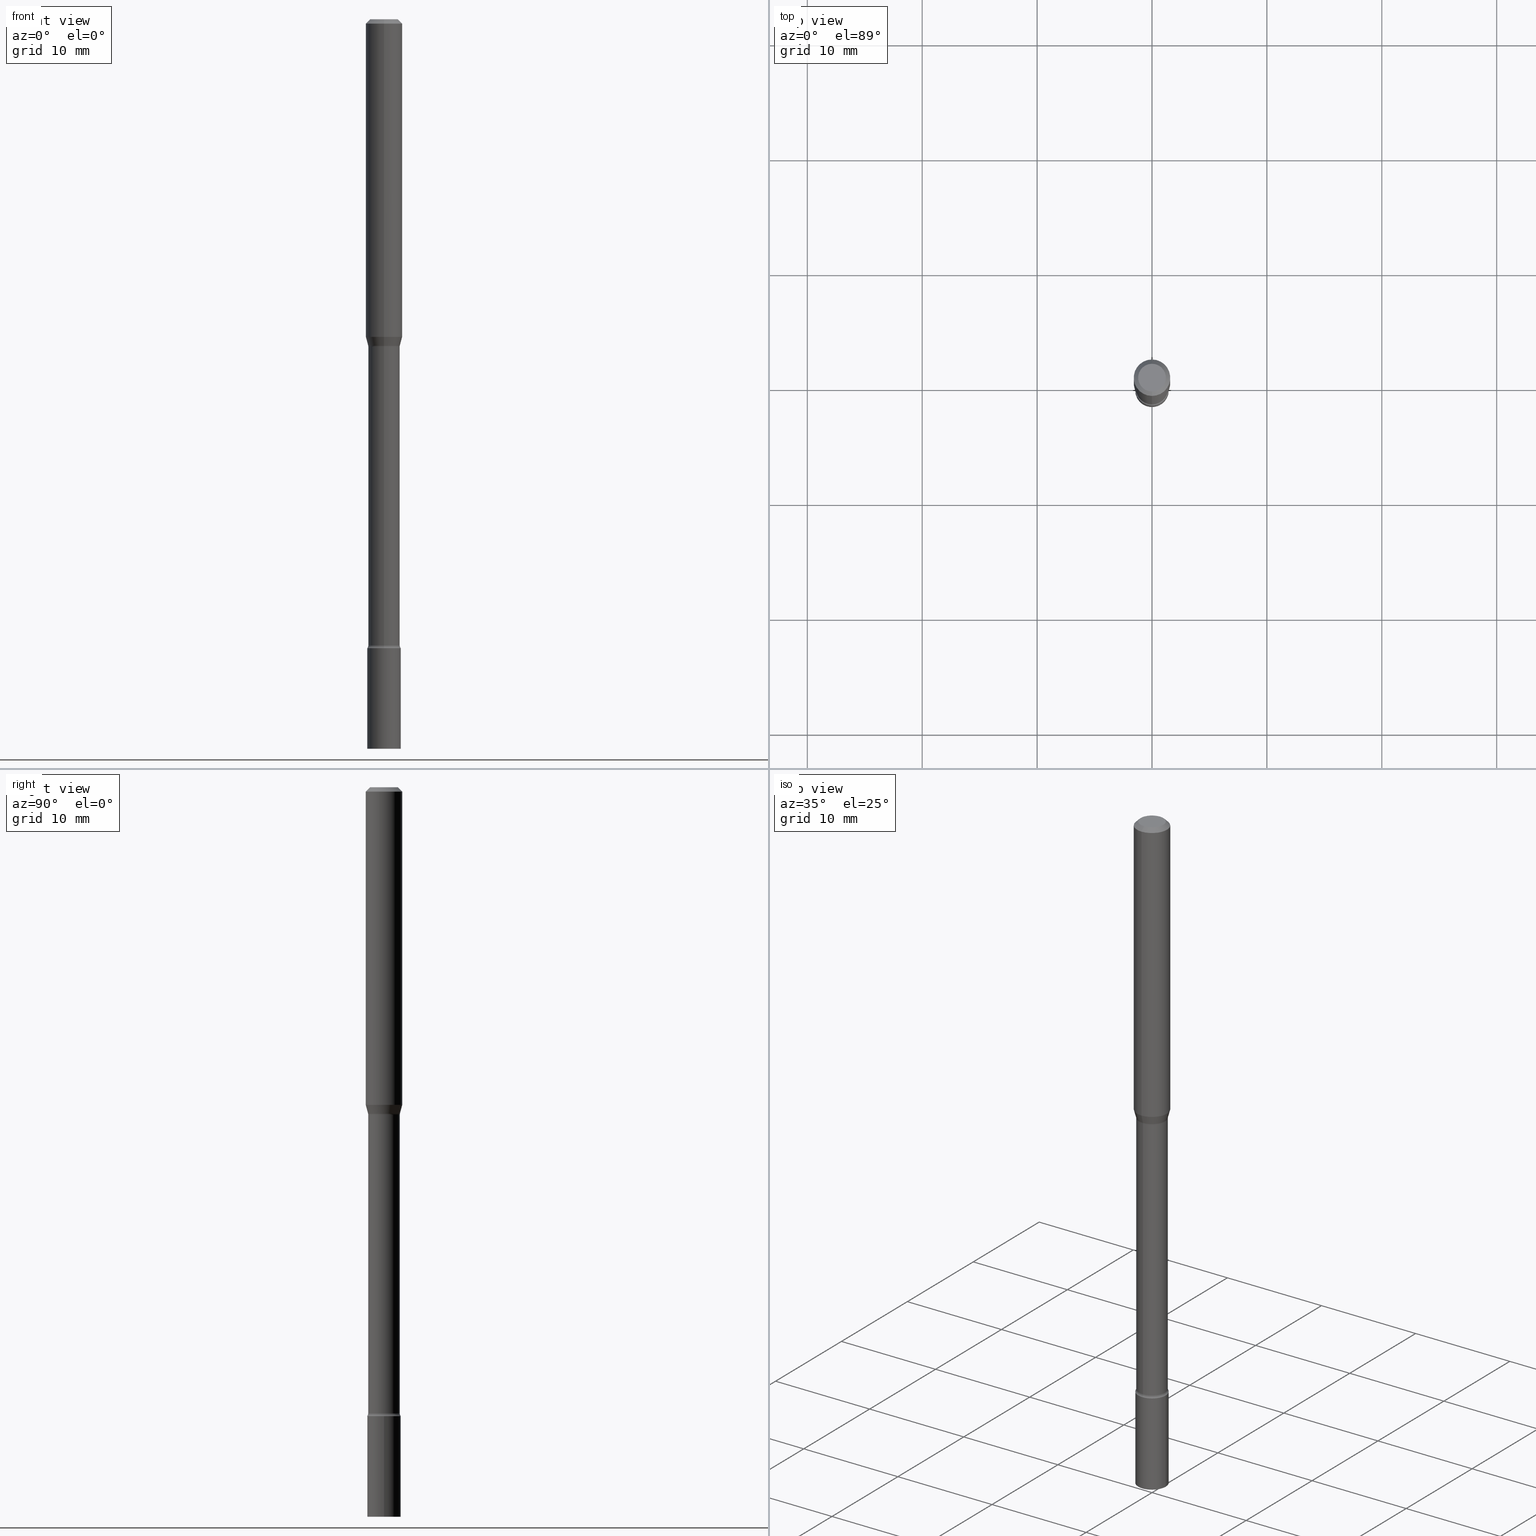
[diagram: canonical four-view strip — front | top / right | iso, engineering-drawing reading convention]
A machine part, canonical four-view strip (front | top / right | iso — engineering-drawing reading convention). The complete STEP part file that produces these views, byte-faithful:
ISO-10303-21;
HEADER;
FILE_DESCRIPTION (( 'STEP AP203' ),
    '1' );
FILE_NAME ('01365.STEP',
    '2024-03-08T21:17:14',
    ( '' ),
    ( '' ),
    'SwSTEP 2.0',
    'SolidWorks 2023',
    '' );
FILE_SCHEMA (( 'CONFIG_CONTROL_DESIGN' ));
ENDSEC;

DATA;
#1 = AXIS2_PLACEMENT_3D ( 'NONE', #306, #345, #19 ) ;
#2 = PRODUCT ( '01365', '01365', '', ( #162 ) ) ;
#3 = ADVANCED_FACE ( 'NONE', ( #180 ), #314, .F. ) ;
#4 = ORIENTED_EDGE ( 'NONE', *, *, #278, .F. ) ;
#5 = ORGANIZATION ( 'UNSPECIFIED', 'UNSPECIFIED', '' ) ;
#6 = PRODUCT_DEFINITION_FORMATION_WITH_SPECIFIED_SOURCE ( 'ANY', '', #2, .NOT_KNOWN. ) ;
#7 = TOROIDAL_SURFACE ( 'NONE', #303, 0.06905000000000000027, 0.01500000000000000638 ) ;
#8 = DIRECTION ( 'NONE',  ( -2.445436772389647239E-29, 3.491527213061536699E-15, 1.000000000000000000 ) ) ;
#9 = EDGE_CURVE ( 'NONE', #115, #444, #269, .T. ) ;
#10 = LINE ( 'NONE', #241, #237 ) ;
#11 = DIRECTION ( 'NONE',  ( 4.937700262164548042E-15, 0.7071067811865451302, -0.7071067811865499042 ) ) ;
#12 = DIRECTION ( 'NONE',  ( -6.982962677686265922E-15, -1.000000000000000000, 2.527148930309216761E-15 ) ) ;
#13 = DIRECTION ( 'NONE',  ( 2.445436772389646959E-29, -3.491527213061536699E-15, -1.000000000000000000 ) ) ;
#14 =( CONVERSION_BASED_UNIT ( 'INCH', #452 ) LENGTH_UNIT ( ) NAMED_UNIT ( #311 ) );
#15 = VECTOR ( 'NONE', #298, 39.37007874015748143 ) ;
#16 = ADVANCED_FACE ( 'NONE', ( #31 ), #475, .T. ) ;
#17 = MANIFOLD_SOLID_BREP ( 'Body-Move/Copy2[2]', #49 ) ;
#18 = MANIFOLD_SOLID_BREP ( 'Body-Move/Copy2[1]', #342 ) ;
#19 = DIRECTION ( 'NONE',  ( 1.000000000000000000, -6.982962677686256455E-15, 0.000000000000000000 ) ) ;
#20 = AXIS2_PLACEMENT_3D ( 'NONE', #143, #393, #308 ) ;
#21 = CARTESIAN_POINT ( 'NONE',  ( -3.809982129783617078E-16, -0.05456111260566786497, -1.118092501787273374 ) ) ;
#22 = CARTESIAN_POINT ( 'NONE',  ( 4.440892098500625669E-16, 0.06250000000000000000, -2.182204508163460437E-16 ) ) ;
#23 = AXIS2_PLACEMENT_3D ( 'NONE', #166, #332, #425 ) ;
#24 = SHAPE_DEFINITION_REPRESENTATION ( #409, #385 ) ;
#25 = ORIENTED_EDGE ( 'NONE', *, *, #412, .T. ) ;
#26 = DESIGN_CONTEXT ( 'detailed design', #260, 'design' ) ;
#27 = CARTESIAN_POINT ( 'NONE',  ( 2.734224518803735704E-29, -3.903850396710320305E-15, -1.118092501787273374 ) ) ;
#28 = CC_DESIGN_PERSON_AND_ORGANIZATION_ASSIGNMENT ( #54, #165, ( #2 ) ) ;
#29 = FACE_OUTER_BOUND ( 'NONE', #353, .T. ) ;
#30 = SECURITY_CLASSIFICATION_LEVEL ( 'unclassified' ) ;
#31 = FACE_OUTER_BOUND ( 'NONE', #437, .T. ) ;
#32 = CIRCLE ( 'NONE', #465, 0.06250000000000000000 ) ;
#33 = AXIS2_PLACEMENT_3D ( 'NONE', #196, #158, #275 ) ;
#34 = AXIS2_PLACEMENT_3D ( 'NONE', #146, #37, #191 ) ;
#35 = CC_DESIGN_DATE_AND_TIME_ASSIGNMENT ( #366, #55, ( #152 ) ) ;
#36 = CALENDAR_DATE ( 2024, 8, 3 ) ;
#37 = DIRECTION ( 'NONE',  ( -2.445436772389647239E-29, 3.491527213061536699E-15, 1.000000000000000000 ) ) ;
#38 = EDGE_LOOP ( 'NONE', ( #474, #401, #468, #519 ) ) ;
#39 = LINE ( 'NONE', #195, #177 ) ;
#40 = APPROVAL_PERSON_ORGANIZATION ( #125, #497, #297 ) ;
#41 = ORIENTED_EDGE ( 'NONE', *, *, #293, .T. ) ;
#42 = CARTESIAN_POINT ( 'NONE',  ( 5.269985277328969904E-29, -7.524142285206980149E-15, -2.155000000000000249 ) ) ;
#43 = VECTOR ( 'NONE', #266, 39.37007874015748143 ) ;
#44 = ORIENTED_EDGE ( 'NONE', *, *, #181, .T. ) ;
#45 = CARTESIAN_POINT ( 'NONE',  ( 5.269916244499690216E-29, -7.524241144147612084E-15, -2.155000000000000249 ) ) ;
#46 = DIRECTION ( 'NONE',  ( -6.982962677686265133E-15, -1.000000000000000000, 2.503475335454093441E-15 ) ) ;
#47 = ORIENTED_EDGE ( 'NONE', *, *, #50, .F. ) ;
#48 = DIRECTION ( 'NONE',  ( 0.000000000000000000, 0.000000000000000000, 1.000000000000000000 ) ) ;
#49 = CLOSED_SHELL ( 'NONE', ( #86, #274, #102, #193, #230, #98, #307, #462, #254, #487, #91, #336, #261, #3 ) ) ;
#50 = EDGE_CURVE ( 'NONE', #291, #155, #243, .T. ) ;
#51 = VECTOR ( 'NONE', #198, 39.37007874015748143 ) ;
#52 = COORDINATED_UNIVERSAL_TIME_OFFSET ( 5, 0, .BEHIND. ) ;
#53 = DIRECTION ( 'NONE',  ( -2.445468806185136877E-29, 3.491481338843145188E-15, 1.000000000000000000 ) ) ;
#54 = PERSON_AND_ORGANIZATION ( #188, #5 ) ;
#55 = DATE_TIME_ROLE ( 'creation_date' ) ;
#56 = EDGE_CURVE ( 'NONE', #319, #232, #378, .T. ) ;
#57 = CYLINDRICAL_SURFACE ( 'NONE', #234, 0.06250000000000000000 ) ;
#58 = VERTEX_POINT ( 'NONE', #267 ) ;
#59 = ORIENTED_EDGE ( 'NONE', *, *, #121, .T. ) ;
#60 = AXIS2_PLACEMENT_3D ( 'NONE', #27, #372, #384 ) ;
#61 = DIRECTION ( 'NONE',  ( 1.000000000000000000, -6.982962677686256455E-15, 0.000000000000000000 ) ) ;
#62 = PLANE ( 'NONE',  #416 ) ;
#63 = CC_DESIGN_PERSON_AND_ORGANIZATION_ASSIGNMENT ( #88, #407, ( #152 ) ) ;
#64 = DIRECTION ( 'NONE',  ( -6.982962677686265922E-15, -1.000000000000000000, 3.491527213061536699E-15 ) ) ;
#65 = CYLINDRICAL_SURFACE ( 'NONE', #83, 0.05750000000000000250 ) ;
#66 = AXIS2_PLACEMENT_3D ( 'NONE', #467, #179, #302 ) ;
#67 = CARTESIAN_POINT ( 'NONE',  ( -4.364351673553912750E-16, -0.06250000000000005551, -0.01499999999999981209 ) ) ;
#68 = COORDINATED_UNIVERSAL_TIME_OFFSET ( 5, 0, .BEHIND. ) ;
#69 = CARTESIAN_POINT ( 'NONE',  ( 2.743754344068948832E-29, -3.917354033082401123E-15, -1.121974787463811296 ) ) ;
#70 = APPROVAL ( #292, 'UNSPECIFIED' ) ;
#71 = APPROVAL_ROLE ( '' ) ;
#72 = DIRECTION ( 'NONE',  ( -2.445436772389647239E-29, 3.491527213061536699E-15, 1.000000000000000000 ) ) ;
#73 = APPROVAL_PERSON_ORGANIZATION ( #184, #459, #71 ) ;
#74 = VERTEX_POINT ( 'NONE', #21 ) ;
#75 = EDGE_CURVE ( 'NONE', #427, #77, #281, .T. ) ;
#76 = AXIS2_PLACEMENT_3D ( 'NONE', #178, #500, #137 ) ;
#77 = VERTEX_POINT ( 'NONE', #67 ) ;
#78 = DIRECTION ( 'NONE',  ( 6.982962677686265922E-15, 1.000000000000000000, -3.483106191921935554E-15 ) ) ;
#79 = APPROVAL_DATE_TIME ( #313, #459 ) ;
#80 = ORIENTED_EDGE ( 'NONE', *, *, #203, .T. ) ;
#81 = CC_DESIGN_PERSON_AND_ORGANIZATION_ASSIGNMENT ( #397, #150, ( #414 ) ) ;
#82 = AXIS2_PLACEMENT_3D ( 'NONE', #142, #491, #329 ) ;
#83 = AXIS2_PLACEMENT_3D ( 'NONE', #477, #344, #305 ) ;
#84 = ORIENTED_EDGE ( 'NONE', *, *, #441, .F. ) ;
#85 = CARTESIAN_POINT ( 'NONE',  ( 0.000000000000000000, 0.000000000000000000, 0.000000000000000000 ) ) ;
#86 = ADVANCED_FACE ( 'NONE', ( #512 ), #7, .F. ) ;
#87 = CARTESIAN_POINT ( 'NONE',  ( 3.668155158584478023E-31, -5.237290819592315723E-17, -0.01500000000000003067 ) ) ;
#88 = PERSON_AND_ORGANIZATION ( #188, #5 ) ;
#89 = AXIS2_PLACEMENT_3D ( 'NONE', #289, #442, #78 ) ;
#90 = FACE_OUTER_BOUND ( 'NONE', #120, .T. ) ;
#91 = ADVANCED_FACE ( 'NONE', ( #473 ), #62, .F. ) ;
#92 = AXIS2_PLACEMENT_3D ( 'NONE', #85, #48, #496 ) ;
#93 = EDGE_LOOP ( 'NONE', ( #279, #354, #449, #382 ) ) ;
#94 = LINE ( 'NONE', #463, #380 ) ;
#95 = ORIENTED_EDGE ( 'NONE', *, *, #160, .T. ) ;
#96 = ORIENTED_EDGE ( 'NONE', *, *, #285, .T. ) ;
#97 = DIRECTION ( 'NONE',  ( -6.982962677686265133E-15, -1.000000000000000000, 2.503475335454093441E-15 ) ) ;
#98 = ADVANCED_FACE ( 'NONE', ( #222 ), #517, .T. ) ;
#99 = PERSON_AND_ORGANIZATION ( #188, #5 ) ;
#100 = PERSON_AND_ORGANIZATION_ROLE ( 'design_supplier' ) ;
#101 = AXIS2_PLACEMENT_3D ( 'NONE', #296, #252, #504 ) ;
#102 = ADVANCED_FACE ( 'NONE', ( #29 ), #215, .F. ) ;
#103 = CIRCLE ( 'NONE', #182, 0.05405000000000000082 ) ;
#104 = DIRECTION ( 'NONE',  ( -6.982962677686265922E-15, -1.000000000000000000, 3.491527213061536699E-15 ) ) ;
#105 = CARTESIAN_POINT ( 'NONE',  ( -3.774291327289431232E-16, -0.05405000000000006327, 1.887170458659762766E-16 ) ) ;
#106 = FACE_OUTER_BOUND ( 'NONE', #161, .T. ) ;
#107 = CARTESIAN_POINT ( 'NONE',  ( 2.743754344068948832E-29, -3.917354033082401123E-15, -1.121974787463811296 ) ) ;
#108 = AXIS2_PLACEMENT_3D ( 'NONE', #42, #386, #272 ) ;
#109 = DIRECTION ( 'NONE',  ( -2.445468806185136597E-29, 3.491481338843145583E-15, 1.000000000000000000 ) ) ;
#110 = EDGE_LOOP ( 'NONE', ( #398, #59, #395, #148 ) ) ;
#111 = EDGE_CURVE ( 'NONE', #205, #257, #408, .T. ) ;
#112 = DIRECTION ( 'NONE',  ( -6.982962677686265922E-15, -1.000000000000000000, 4.751039988981327336E-15 ) ) ;
#113 = ORIENTED_EDGE ( 'NONE', *, *, #412, .F. ) ;
#114 = DIRECTION ( 'NONE',  ( -6.982962677686265922E-15, -1.000000000000000000, 2.527148930309216761E-15 ) ) ;
#115 = VERTEX_POINT ( 'NONE', #255 ) ;
#116 = DIRECTION ( 'NONE',  ( -6.982962677686265922E-15, -1.000000000000000000, 3.491527213061536699E-15 ) ) ;
#117 = FACE_OUTER_BOUND ( 'NONE', #277, .T. ) ;
#118 = AXIS2_PLACEMENT_3D ( 'NONE', #126, #340, #461 ) ;
#119 = CARTESIAN_POINT ( 'NONE',  ( 4.440892098500893388E-16, 0.06249999999999993755, -0.01500000000000024751 ) ) ;
#120 = EDGE_LOOP ( 'NONE', ( #183, #339 ) ) ;
#121 = EDGE_CURVE ( 'NONE', #429, #352, #466, .T. ) ;
#122 = CARTESIAN_POINT ( 'NONE',  ( 7.070181234783322370E-46, -1.009460987143021978E-31, -2.891173190249542681E-17 ) ) ;
#123 = COORDINATED_UNIVERSAL_TIME_OFFSET ( 5, 0, .BEHIND. ) ;
#124 = DIRECTION ( 'NONE',  ( -6.982962677686265922E-15, -1.000000000000000000, 3.483106191921935554E-15 ) ) ;
#125 = PERSON_AND_ORGANIZATION ( #188, #5 ) ;
#126 = CARTESIAN_POINT ( 'NONE',  ( -4.821735728941850689E-16, -0.06905000000000761917, -2.145429341715430205 ) ) ;
#127 = CALENDAR_DATE ( 2024, 8, 3 ) ;
#128 = EDGE_CURVE ( 'NONE', #399, #427, #134, .T. ) ;
#129 = FACE_OUTER_BOUND ( 'NONE', #93, .T. ) ;
#130 = EDGE_LOOP ( 'NONE', ( #95, #357, #440, #240 ) ) ;
#131 = CC_DESIGN_APPROVAL ( #70, ( #152 ) ) ;
#132 = CYLINDRICAL_SURFACE ( 'NONE', #66, 0.06250000000000000000 ) ;
#133 = ORIENTED_EDGE ( 'NONE', *, *, #210, .T. ) ;
#134 = LINE ( 'NONE', #22, #43 ) ;
#135 = EDGE_LOOP ( 'NONE', ( #44, #381, #443, #304 ) ) ;
#136 = ORIENTED_EDGE ( 'NONE', *, *, #181, .F. ) ;
#137 = DIRECTION ( 'NONE',  ( -6.982962677686265922E-15, -1.000000000000000000, 3.491527213061536699E-15 ) ) ;
#138 = CARTESIAN_POINT ( 'NONE',  ( -3.773273898774340269E-16, -0.04749999999999999362, 1.369358107179275459E-16 ) ) ;
#139 = ORIENTED_EDGE ( 'NONE', *, *, #121, .F. ) ;
#140 = CARTESIAN_POINT ( 'NONE',  ( 3.840629472727447874E-16, 0.04749999999999999362, -1.947592745229184119E-16 ) ) ;
#141 = EDGE_CURVE ( 'NONE', #352, #58, #39, .T. ) ;
#142 = CARTESIAN_POINT ( 'NONE',  ( 5.246580531039397913E-29, -7.490726510405960421E-15, -2.145429341715430649 ) ) ;
#143 = CARTESIAN_POINT ( 'NONE',  ( 4.906297590423765932E-16, 0.06904999999999608673, -1.121974787463811518 ) ) ;
#144 = AXIS2_PLACEMENT_3D ( 'NONE', #157, #358, #488 ) ;
#145 = ORIENTED_EDGE ( 'NONE', *, *, #453, .T. ) ;
#146 = CARTESIAN_POINT ( 'NONE',  ( 5.246511804794628703E-29, -7.490824930300124900E-15, -2.145429341715430649 ) ) ;
#147 = DIRECTION ( 'NONE',  ( -6.982962677686266711E-15, -1.000000000000000000, 3.491527213061537094E-15 ) ) ;
#148 = ORIENTED_EDGE ( 'NONE', *, *, #203, .F. ) ;
#149 = LOCAL_TIME ( 16, 17, 14.00000000000000000, #348 ) ;
#150 = PERSON_AND_ORGANIZATION_ROLE ( 'classification_officer' ) ;
#151 = ORIENTED_EDGE ( 'NONE', *, *, #217, .T. ) ;
#152 = PRODUCT_DEFINITION ( 'UNKNOWN', '', #6, #26 ) ;
#153 = AXIS2_PLACEMENT_3D ( 'NONE', #216, #172, #61 ) ;
#154 = EDGE_LOOP ( 'NONE', ( #47, #284, #133, #145 ) ) ;
#155 = VERTEX_POINT ( 'NONE', #451 ) ;
#156 = AXIS2_PLACEMENT_3D ( 'NONE', #122, #242, #330 ) ;
#157 = CARTESIAN_POINT ( 'NONE',  ( 2.661770308399798169E-29, -3.800402272357863014E-15, -1.088464170676043397 ) ) ;
#158 = DIRECTION ( 'NONE',  ( 2.438088387897960049E-29, -3.491481338843145188E-15, -1.000000000000000000 ) ) ;
#159 = DIRECTION ( 'NONE',  ( -2.445436772389647239E-29, 3.491527213061536699E-15, 1.000000000000000000 ) ) ;
#160 = EDGE_CURVE ( 'NONE', #74, #291, #334, .T. ) ;
#161 = EDGE_LOOP ( 'NONE', ( #351, #403, #151, #186 ) ) ;
#162 = MECHANICAL_CONTEXT ( 'NONE', #250, 'mechanical' ) ;
#163 = CARTESIAN_POINT ( 'NONE',  ( 0.000000000000000000, 0.000000000000000000, 0.000000000000000000 ) ) ;
#164 = CIRCLE ( 'NONE', #34, 0.05405000000000011878 ) ;
#165 = PERSON_AND_ORGANIZATION_ROLE ( 'design_owner' ) ;
#166 = CARTESIAN_POINT ( 'NONE',  ( -4.821735728942093263E-16, -0.06905000000000392768, -1.121974787463811074 ) ) ;
#167 = DIRECTION ( 'NONE',  ( 1.000000000000000000, -6.982962677686265922E-15, 4.876176775795935232E-29 ) ) ;
#168 = CARTESIAN_POINT ( 'NONE',  ( 3.316907271900976096E-16, 0.04749999999999999362, -1.803034085716706892E-16 ) ) ;
#169 = CARTESIAN_POINT ( 'NONE',  ( 3.840483486783345014E-16, 0.05405000000000006327, -1.887170458659762766E-16 ) ) ;
#170 = CIRCLE ( 'NONE', #118, 0.01500000000000001853 ) ;
#171 = ORIENTED_EDGE ( 'NONE', *, *, #173, .T. ) ;
#172 = DIRECTION ( 'NONE',  ( -2.445468806185136597E-29, 3.491481338843145583E-15, 1.000000000000000000 ) ) ;
#173 = EDGE_CURVE ( 'NONE', #77, #427, #187, .T. ) ;
#174 = VECTOR ( 'NONE', #387, 39.37007874015748143 ) ;
#175 = EDGE_LOOP ( 'NONE', ( #383, #25, #391, #322 ) ) ;
#176 = DIRECTION ( 'NONE',  ( -2.445436772389647239E-29, 3.491527213061536699E-15, 1.000000000000000000 ) ) ;
#177 = VECTOR ( 'NONE', #419, 39.37007874015748143 ) ;
#178 = CARTESIAN_POINT ( 'NONE',  ( 5.246580531039397913E-29, -7.490726510405960421E-15, -2.145429341715430649 ) ) ;
#179 = DIRECTION ( 'NONE',  ( -2.445436772389647239E-29, 3.491527213061536699E-15, 1.000000000000000000 ) ) ;
#180 = FACE_OUTER_BOUND ( 'NONE', #154, .T. ) ;
#181 = EDGE_CURVE ( 'NONE', #352, #429, #363, .T. ) ;
#182 = AXIS2_PLACEMENT_3D ( 'NONE', #370, #456, #114 ) ;
#183 = ORIENTED_EDGE ( 'NONE', *, *, #56, .T. ) ;
#184 = PERSON_AND_ORGANIZATION ( #188, #5 ) ;
#185 = DIRECTION ( 'NONE',  ( -2.438088387897960049E-29, 3.491481338843145188E-15, 1.000000000000000000 ) ) ;
#186 = ORIENTED_EDGE ( 'NONE', *, *, #111, .T. ) ;
#187 = CIRCLE ( 'NONE', #458, 0.06250000000000000000 ) ;
#188 = PERSON ( 'UNSPECIFIED', 'UNSPECIFIED', 'UNSPECIFIED', ('UNSPECIFIED'), ('UNSPECIFIED'), ('UNSPECIFIED') ) ;
#189 = PLANE ( 'NONE',  #33 ) ;
#190 = ORIENTED_EDGE ( 'NONE', *, *, #206, .T. ) ;
#191 = DIRECTION ( 'NONE',  ( -6.982962677686265922E-15, -1.000000000000000000, 5.054297860618422477E-15 ) ) ;
#192 = PERSON_AND_ORGANIZATION_ROLE ( 'creator' ) ;
#193 = ADVANCED_FACE ( 'NONE', ( #420 ), #323, .T. ) ;
#194 = ORIENTED_EDGE ( 'NONE', *, *, #235, .T. ) ;
#195 = CARTESIAN_POINT ( 'NONE',  ( 0.05750000000000000250, -4.015203539669603161E-16, 2.803801646082662941E-30 ) ) ;
#196 = CARTESIAN_POINT ( 'NONE',  ( 4.015203539670214529E-16, 0.05749999999999127337, -2.500000000000000000 ) ) ;
#197 = CARTESIAN_POINT ( 'NONE',  ( 4.085620730621103304E-16, 0.05749999999999248768, -2.155000000000000249 ) ) ;
#198 = DIRECTION ( 'NONE',  ( -2.445436772389647239E-29, 3.491527213061536699E-15, 1.000000000000000000 ) ) ;
#199 = CIRCLE ( 'NONE', #108, 0.05750000000000000250 ) ;
#200 = FACE_OUTER_BOUND ( 'NONE', #38, .T. ) ;
#201 = DIRECTION ( 'NONE',  ( -2.445436772389647239E-29, 3.491527213061536699E-15, 1.000000000000000000 ) ) ;
#202 = DIRECTION ( 'NONE',  ( -2.445436772389647239E-29, 3.491527213061536699E-15, 1.000000000000000000 ) ) ;
#203 = EDGE_CURVE ( 'NONE', #507, #58, #392, .T. ) ;
#204 = ORIENTED_EDGE ( 'NONE', *, *, #75, .F. ) ;
#205 = VERTEX_POINT ( 'NONE', #485 ) ;
#206 = EDGE_CURVE ( 'NONE', #58, #507, #199, .T. ) ;
#207 = AXIS2_PLACEMENT_3D ( 'NONE', #233, #201, #116 ) ;
#208 = AXIS2_PLACEMENT_3D ( 'NONE', #168, #13, #457 ) ;
#209 =( NAMED_UNIT ( * ) SI_UNIT ( $, .STERADIAN. ) SOLID_ANGLE_UNIT ( ) );
#210 = EDGE_CURVE ( 'NONE', #74, #444, #246, .T. ) ;
#211 = APPROVAL_ROLE ( '' ) ;
#212 = ORIENTED_EDGE ( 'NONE', *, *, #331, .T. ) ;
#213 = CARTESIAN_POINT ( 'NONE',  ( -3.809982129783617078E-16, -0.05456111260566786497, -1.118092501787273374 ) ) ;
#214 = DIRECTION ( 'NONE',  ( -2.445436772389647239E-29, 3.491527213061536699E-15, 1.000000000000000000 ) ) ;
#215 = TOROIDAL_SURFACE ( 'NONE', #76, 0.06905000000000012517, 0.01500000000000001159 ) ;
#216 = CARTESIAN_POINT ( 'NONE',  ( 6.113672015462842613E-29, -8.728703347107864943E-15, -2.500000000000000000 ) ) ;
#217 = EDGE_CURVE ( 'NONE', #115, #205, #170, .T. ) ;
#218 = EDGE_LOOP ( 'NONE', ( #84, #520, #212, #503 ) ) ;
#219 = CARTESIAN_POINT ( 'NONE',  ( 4.015203539670130219E-16, 0.05749999999999248074, -2.155000000000000249 ) ) ;
#220 =( NAMED_UNIT ( * ) PLANE_ANGLE_UNIT ( ) SI_UNIT ( $, .RADIAN. ) );
#221 = AXIS2_PLACEMENT_3D ( 'NONE', #418, #214, #506 ) ;
#222 = FACE_OUTER_BOUND ( 'NONE', #130, .T. ) ;
#223 = DIRECTION ( 'NONE',  ( 7.105427357601006592E-15, 1.000000000000000000, 0.000000000000000000 ) ) ;
#224 = DIRECTION ( 'NONE',  ( -6.982962677686265922E-15, -1.000000000000000000, 3.491527213061536699E-15 ) ) ;
#225 = DATE_AND_TIME ( #227, #149 ) ;
#226 = DIRECTION ( 'NONE',  ( -2.445436772389647239E-29, 3.491527213061536699E-15, 1.000000000000000000 ) ) ;
#227 = CALENDAR_DATE ( 2024, 8, 3 ) ;
#228 = AXIS2_PLACEMENT_3D ( 'NONE', #271, #273, #431 ) ;
#229 = CARTESIAN_POINT ( 'NONE',  ( 4.440892098500890430E-16, 0.06249999999999618361, -1.088464170676043841 ) ) ;
#230 = ADVANCED_FACE ( 'NONE', ( #508 ), #132, .T. ) ;
#231 = DIRECTION ( 'NONE',  ( 1.000000000000000000, -6.982962677686273810E-15, 0.000000000000000000 ) ) ;
#232 = VERTEX_POINT ( 'NONE', #138 ) ;
#233 = CARTESIAN_POINT ( 'NONE',  ( 0.000000000000000000, 0.000000000000000000, 0.000000000000000000 ) ) ;
#234 = AXIS2_PLACEMENT_3D ( 'NONE', #335, #176, #104 ) ;
#235 = EDGE_CURVE ( 'NONE', #374, #257, #315, .T. ) ;
#236 = ORIENTED_EDGE ( 'NONE', *, *, #111, .F. ) ;
#237 = VECTOR ( 'NONE', #328, 39.37007874015748143 ) ;
#238 = CARTESIAN_POINT ( 'NONE',  ( 2.661770308399798169E-29, -3.800402272357863014E-15, -1.088464170676043397 ) ) ;
#239 = DIRECTION ( 'NONE',  ( -6.982962677686265922E-15, -1.000000000000000000, 3.491527213061536699E-15 ) ) ;
#240 = ORIENTED_EDGE ( 'NONE', *, *, #518, .F. ) ;
#241 = CARTESIAN_POINT ( 'NONE',  ( 3.876800221694608874E-16, 0.05456111260566005872, -1.118092501787273596 ) ) ;
#242 = DIRECTION ( 'NONE',  ( -2.445436772389647239E-29, 3.491527213061536699E-15, 1.000000000000000000 ) ) ;
#243 = CIRCLE ( 'NONE', #20, 0.01500000000000001159 ) ;
#244 = DIRECTION ( 'NONE',  ( -2.445436772389647239E-29, 3.491527213061536699E-15, 1.000000000000000000 ) ) ;
#245 = CARTESIAN_POINT ( 'NONE',  ( -0.05750000000000000250, -7.717860743095363393E-15, -2.155000000000000249 ) ) ;
#246 = CIRCLE ( 'NONE', #23, 0.01500000000000001159 ) ;
#247 = CARTESIAN_POINT ( 'NONE',  ( 2.734224518803735704E-29, -3.903850396710320305E-15, -1.118092501787273374 ) ) ;
#248 = ADVANCED_FACE ( 'NONE', ( #359 ), #448, .T. ) ;
#249 = DIRECTION ( 'NONE',  ( -1.807323732225335661E-15, -0.2588190451025189631, 0.9659258262890687563 ) ) ;
#250 = APPLICATION_CONTEXT ( 'configuration controlled 3d designs of mechanical parts and assemblies' ) ;
#251 = LINE ( 'NONE', #169, #15 ) ;
#252 = DIRECTION ( 'NONE',  ( 2.445436772389647239E-29, -3.491527213061536699E-15, -1.000000000000000000 ) ) ;
#253 = DIRECTION ( 'NONE',  ( -6.982962677686265922E-15, -1.000000000000000000, 4.370956789862821150E-15 ) ) ;
#254 = ADVANCED_FACE ( 'NONE', ( #200 ), #439, .T. ) ;
#255 = CARTESIAN_POINT ( 'NONE',  ( -3.774291327288910583E-16, -0.05405000000000760585, -2.145429341715430205 ) ) ;
#256 = DIRECTION ( 'NONE',  ( -4.851104656540964275E-15, -0.7071067811865500152, -0.7071067811865450192 ) ) ;
#257 = VERTEX_POINT ( 'NONE', #197 ) ;
#258 = CYLINDRICAL_SURFACE ( 'NONE', #509, 0.05405000000000006327 ) ;
#259 = VECTOR ( 'NONE', #53, 39.37007874015748143 ) ;
#260 = APPLICATION_CONTEXT ( 'configuration controlled 3d designs of mechanical parts and assemblies' ) ;
#261 = ADVANCED_FACE ( 'NONE', ( #484 ), #283, .T. ) ;
#262 = CARTESIAN_POINT ( 'NONE',  ( 4.906297590424025270E-16, 0.06904999999999264504, -2.145429341715431093 ) ) ;
#263 =( GEOMETRIC_REPRESENTATION_CONTEXT ( 3 ) GLOBAL_UNCERTAINTY_ASSIGNED_CONTEXT ( ( #417 ) ) GLOBAL_UNIT_ASSIGNED_CONTEXT ( ( #14, #220, #209 ) ) REPRESENTATION_CONTEXT ( 'NONE', 'WORKASPACE' ) );
#264 = APPROVAL_DATE_TIME ( #410, #70 ) ;
#265 = CC_DESIGN_APPROVAL ( #459, ( #414 ) ) ;
#266 = DIRECTION ( 'NONE',  ( -2.445436772389647239E-29, 3.491527213061536699E-15, 1.000000000000000000 ) ) ;
#267 = CARTESIAN_POINT ( 'NONE',  ( 0.05750000000000000250, -7.925662639173940169E-15, -2.155000000000000249 ) ) ;
#268 = ORIENTED_EDGE ( 'NONE', *, *, #293, .F. ) ;
#269 = LINE ( 'NONE', #105, #174 ) ;
#270 = AXIS2_PLACEMENT_3D ( 'NONE', #286, #404, #46 ) ;
#271 = CARTESIAN_POINT ( 'NONE',  ( 3.668155158584478023E-31, -5.237290819592315723E-17, -0.01500000000000003067 ) ) ;
#272 = DIRECTION ( 'NONE',  ( 1.000000000000000000, -6.982962677686273810E-15, 0.000000000000000000 ) ) ;
#273 = DIRECTION ( 'NONE',  ( -2.445436772389647239E-29, 3.491527213061536699E-15, 1.000000000000000000 ) ) ;
#274 = ADVANCED_FACE ( 'NONE', ( #129 ), #258, .T. ) ;
#275 = DIRECTION ( 'NONE',  ( -1.000000000000000000, 6.982962677686265922E-15, -4.876176775795935793E-29 ) ) ;
#276 = CARTESIAN_POINT ( 'NONE',  ( 5.269985277328969904E-29, -7.524142285206980149E-15, -2.155000000000000249 ) ) ;
#277 = EDGE_LOOP ( 'NONE', ( #476, #421, #422, #438 ) ) ;
#278 = EDGE_CURVE ( 'NONE', #320, #77, #495, .T. ) ;
#279 = ORIENTED_EDGE ( 'NONE', *, *, #402, .T. ) ;
#280 = DIRECTION ( 'NONE',  ( -6.982962677686265922E-15, -1.000000000000000000, 3.491527213061536699E-15 ) ) ;
#281 = CIRCLE ( 'NONE', #228, 0.06250000000000000000 ) ;
#282 = DIRECTION ( 'NONE',  ( -6.982962677686265922E-15, -1.000000000000000000, 5.054297860618422477E-15 ) ) ;
#283 = CYLINDRICAL_SURFACE ( 'NONE', #207, 0.05405000000000006327 ) ;
#284 = ORIENTED_EDGE ( 'NONE', *, *, #160, .F. ) ;
#285 = EDGE_CURVE ( 'NONE', #232, #77, #94, .T. ) ;
#286 = CARTESIAN_POINT ( 'NONE',  ( 2.734224518803735704E-29, -3.903850396710320305E-15, -1.118092501787273374 ) ) ;
#287 = EDGE_LOOP ( 'NONE', ( #464, #316, #365, #4 ) ) ;
#288 = CC_DESIGN_APPROVAL ( #497, ( #6 ) ) ;
#289 = CARTESIAN_POINT ( 'NONE',  ( 3.668155158584478023E-31, -5.237290819592315723E-17, -0.01500000000000003067 ) ) ;
#290 = AXIS2_PLACEMENT_3D ( 'NONE', #310, #226, #12 ) ;
#291 = VERTEX_POINT ( 'NONE', #492 ) ;
#292 = APPROVAL_STATUS ( 'not_yet_approved' ) ;
#293 = EDGE_CURVE ( 'NONE', #257, #205, #426, .T. ) ;
#294 = AXIS2_PLACEMENT_3D ( 'NONE', #362, #327, #493 ) ;
#295 = CIRCLE ( 'NONE', #156, 0.04749999999999999362 ) ;
#296 = CARTESIAN_POINT ( 'NONE',  ( 3.668155158584478023E-31, -5.237290819592315723E-17, -0.01500000000000003067 ) ) ;
#297 = APPROVAL_ROLE ( '' ) ;
#298 = DIRECTION ( 'NONE',  ( -2.445436772389647239E-29, 3.491527213061536699E-15, 1.000000000000000000 ) ) ;
#299 = PRODUCT_RELATED_PRODUCT_CATEGORY ( 'detail', '', ( #2 ) ) ;
#300 = DATE_AND_TIME ( #127, #376 ) ;
#301 = CARTESIAN_POINT ( 'NONE',  ( 0.000000000000000000, 0.000000000000000000, 0.000000000000000000 ) ) ;
#302 = DIRECTION ( 'NONE',  ( -6.982962677686265922E-15, -1.000000000000000000, 3.491527213061536699E-15 ) ) ;
#303 = AXIS2_PLACEMENT_3D ( 'NONE', #107, #424, #280 ) ;
#304 = ORIENTED_EDGE ( 'NONE', *, *, #141, .F. ) ;
#305 = DIRECTION ( 'NONE',  ( 1.000000000000000000, -6.982962677686265922E-15, 4.876176775795935232E-29 ) ) ;
#306 = CARTESIAN_POINT ( 'NONE',  ( 6.113672015462842613E-29, -8.728703347107864943E-15, -2.500000000000000000 ) ) ;
#307 = ADVANCED_FACE ( 'NONE', ( #117 ), #445, .T. ) ;
#308 = DIRECTION ( 'NONE',  ( 7.105427357601001859E-15, 1.000000000000000000, 0.000000000000000000 ) ) ;
#309 = TOROIDAL_SURFACE ( 'NONE', #82, 0.06905000000000012517, 0.01500000000000001159 ) ;
#310 = CARTESIAN_POINT ( 'NONE',  ( 2.743718402958062645E-29, -3.917405502798830282E-15, -1.121974787463811074 ) ) ;
#311 = DIMENSIONAL_EXPONENTS ( 1.000000000000000000, 0.000000000000000000, 0.000000000000000000, 0.000000000000000000, 0.000000000000000000, 0.000000000000000000, 0.000000000000000000 ) ;
#312 = EDGE_LOOP ( 'NONE', ( #396, #337, #361, #204 ) ) ;
#313 = DATE_AND_TIME ( #36, #341 ) ;
#314 = TOROIDAL_SURFACE ( 'NONE', #406, 0.06905000000000000027, 0.01500000000000000638 ) ;
#315 = CIRCLE ( 'NONE', #355, 0.01500000000000000291 ) ;
#316 = ORIENTED_EDGE ( 'NONE', *, *, #128, .T. ) ;
#317 = EDGE_CURVE ( 'NONE', #319, #427, #511, .T. ) ;
#318 = CARTESIAN_POINT ( 'NONE',  ( -0.05750000000000000250, -7.717860743095363393E-15, -2.500000000000000000 ) ) ;
#319 = VERTEX_POINT ( 'NONE', #140 ) ;
#320 = VERTEX_POINT ( 'NONE', #514 ) ;
#321 =( LENGTH_UNIT ( ) NAMED_UNIT ( * ) SI_UNIT ( $, .METRE. ) );
#322 = ORIENTED_EDGE ( 'NONE', *, *, #331, .F. ) ;
#323 = CONICAL_SURFACE ( 'NONE', #101, 0.06250000000000000000, 0.7853981633974483900 ) ;
#324 = AXIS2_PLACEMENT_3D ( 'NONE', #481, #202, #282 ) ;
#325 = AXIS2_PLACEMENT_3D ( 'NONE', #247, #515, #97 ) ;
#326 = EDGE_CURVE ( 'NONE', #374, #155, #251, .T. ) ;
#327 = DIRECTION ( 'NONE',  ( -2.445436772389647239E-29, 3.491527213061536699E-15, 1.000000000000000000 ) ) ;
#328 = DIRECTION ( 'NONE',  ( 1.839019923739605837E-15, 0.2588190451025257355, 0.9659258262890669799 ) ) ;
#329 = DIRECTION ( 'NONE',  ( -6.982962677686265922E-15, -1.000000000000000000, 3.491527213061536699E-15 ) ) ;
#330 = DIRECTION ( 'NONE',  ( -6.982962677686266711E-15, -1.000000000000000000, 3.491527213061537094E-15 ) ) ;
#331 = EDGE_CURVE ( 'NONE', #155, #444, #343, .T. ) ;
#332 = DIRECTION ( 'NONE',  ( -1.000000000000000000, 6.982962677686265922E-15, -4.883557194083112340E-29 ) ) ;
#333 = CALENDAR_DATE ( 2024, 8, 3 ) ;
#334 = CIRCLE ( 'NONE', #294, 0.05456111260566396531 ) ;
#335 = CARTESIAN_POINT ( 'NONE',  ( 0.000000000000000000, 0.000000000000000000, 0.000000000000000000 ) ) ;
#336 = ADVANCED_FACE ( 'NONE', ( #106 ), #309, .F. ) ;
#337 = ORIENTED_EDGE ( 'NONE', *, *, #480, .T. ) ;
#338 = LINE ( 'NONE', #415, #259 ) ;
#339 = ORIENTED_EDGE ( 'NONE', *, *, #430, .T. ) ;
#340 = DIRECTION ( 'NONE',  ( -1.000000000000000000, 6.982962677686265922E-15, -4.883557194083112340E-29 ) ) ;
#341 = LOCAL_TIME ( 16, 17, 14.00000000000000000, #68 ) ;
#342 = CLOSED_SHELL ( 'NONE', ( #446, #16, #248, #375 ) ) ;
#343 = CIRCLE ( 'NONE', #290, 0.05405000000000000082 ) ;
#344 = DIRECTION ( 'NONE',  ( -2.445468806185136597E-29, 3.491481338843145583E-15, 1.000000000000000000 ) ) ;
#345 = DIRECTION ( 'NONE',  ( -2.445468806185136597E-29, 3.491481338843145583E-15, 1.000000000000000000 ) ) ;
#346 = DIRECTION ( 'NONE',  ( -2.445436772389646959E-29, 3.491527213061536699E-15, 1.000000000000000000 ) ) ;
#347 = EDGE_CURVE ( 'NONE', #320, #399, #373, .T. ) ;
#348 = COORDINATED_UNIVERSAL_TIME_OFFSET ( 5, 0, .BEHIND. ) ;
#349 = DIRECTION ( 'NONE',  ( 1.000000000000000000, -6.982962677686265922E-15, 4.876176775795935793E-29 ) ) ;
#350 = LOCAL_TIME ( 16, 17, 14.00000000000000000, #123 ) ;
#351 = ORIENTED_EDGE ( 'NONE', *, *, #235, .F. ) ;
#352 = VERTEX_POINT ( 'NONE', #447 ) ;
#353 = EDGE_LOOP ( 'NONE', ( #113, #194, #41, #490 ) ) ;
#354 = ORIENTED_EDGE ( 'NONE', *, *, #326, .T. ) ;
#355 = AXIS2_PLACEMENT_3D ( 'NONE', #262, #510, #223 ) ;
#356 = CIRCLE ( 'NONE', #324, 0.05405000000000011878 ) ;
#357 = ORIENTED_EDGE ( 'NONE', *, *, #501, .T. ) ;
#358 = DIRECTION ( 'NONE',  ( -2.445436772389647239E-29, 3.491527213061536699E-15, 1.000000000000000000 ) ) ;
#359 = FACE_OUTER_BOUND ( 'NONE', #110, .T. ) ;
#360 = CC_DESIGN_SECURITY_CLASSIFICATION ( #414, ( #6 ) ) ;
#361 = ORIENTED_EDGE ( 'NONE', *, *, #278, .T. ) ;
#362 = CARTESIAN_POINT ( 'NONE',  ( 2.734224518803735704E-29, -3.903850396710320305E-15, -1.118092501787273374 ) ) ;
#363 = CIRCLE ( 'NONE', #1, 0.05750000000000000250 ) ;
#364 = DIRECTION ( 'NONE',  ( -2.445468806185136597E-29, 3.491481338843145583E-15, 1.000000000000000000 ) ) ;
#365 = ORIENTED_EDGE ( 'NONE', *, *, #173, .F. ) ;
#366 = DATE_AND_TIME ( #333, #513 ) ;
#367 = CARTESIAN_POINT ( 'NONE',  ( -4.364351673553916201E-16, -0.06250000000000000000, 2.182204508163460437E-16 ) ) ;
#368 = PERSON_AND_ORGANIZATION ( #188, #5 ) ;
#369 = EDGE_CURVE ( 'NONE', #429, #507, #338, .T. ) ;
#370 = CARTESIAN_POINT ( 'NONE',  ( 2.743718402958062645E-29, -3.917405502798830282E-15, -1.121974787463811074 ) ) ;
#371 = COORDINATED_UNIVERSAL_TIME_OFFSET ( 5, 0, .BEHIND. ) ;
#372 = DIRECTION ( 'NONE',  ( -2.445436772389647239E-29, 3.491527213061536699E-15, 1.000000000000000000 ) ) ;
#373 = CIRCLE ( 'NONE', #144, 0.06250000000000000000 ) ;
#374 = VERTEX_POINT ( 'NONE', #411 ) ;
#375 = ADVANCED_FACE ( 'NONE', ( #413 ), #189, .T. ) ;
#376 = LOCAL_TIME ( 16, 17, 14.00000000000000000, #371 ) ;
#377 = CARTESIAN_POINT ( 'NONE',  ( 5.269985277328969904E-29, -7.524142285206980149E-15, -2.155000000000000249 ) ) ;
#378 = CIRCLE ( 'NONE', #455, 0.04749999999999999362 ) ;
#379 = CARTESIAN_POINT ( 'NONE',  ( -3.774291327289152665E-16, -0.05405000000000392130, -1.121974787463811074 ) ) ;
#380 = VECTOR ( 'NONE', #256, 39.37007874015748143 ) ;
#381 = ORIENTED_EDGE ( 'NONE', *, *, #369, .T. ) ;
#382 = ORIENTED_EDGE ( 'NONE', *, *, #9, .F. ) ;
#383 = ORIENTED_EDGE ( 'NONE', *, *, #326, .F. ) ;
#384 = DIRECTION ( 'NONE',  ( -6.982962677686265133E-15, -1.000000000000000000, 2.503475335454093441E-15 ) ) ;
#385 = ADVANCED_BREP_SHAPE_REPRESENTATION ( '01365', ( #18, #17, #92 ), #263 ) ;
#386 = DIRECTION ( 'NONE',  ( -2.445468806185136597E-29, 3.491481338843145583E-15, 1.000000000000000000 ) ) ;
#387 = DIRECTION ( 'NONE',  ( -2.445436772389647239E-29, 3.491527213061536699E-15, 1.000000000000000000 ) ) ;
#388 = CC_DESIGN_PERSON_AND_ORGANIZATION_ASSIGNMENT ( #99, #192, ( #6 ) ) ;
#389 = ORIENTED_EDGE ( 'NONE', *, *, #430, .F. ) ;
#390 = PERSON_AND_ORGANIZATION ( #188, #5 ) ;
#391 = ORIENTED_EDGE ( 'NONE', *, *, #9, .T. ) ;
#392 = CIRCLE ( 'NONE', #482, 0.05750000000000000250 ) ;
#393 = DIRECTION ( 'NONE',  ( 1.000000000000000000, -7.105427357601001070E-15, 4.926316070339229733E-29 ) ) ;
#394 = VECTOR ( 'NONE', #249, 39.37007874015748854 ) ;
#395 = ORIENTED_EDGE ( 'NONE', *, *, #141, .T. ) ;
#396 = ORIENTED_EDGE ( 'NONE', *, *, #128, .F. ) ;
#397 = PERSON_AND_ORGANIZATION ( #188, #5 ) ;
#398 = ORIENTED_EDGE ( 'NONE', *, *, #369, .F. ) ;
#399 = VERTEX_POINT ( 'NONE', #229 ) ;
#400 = CC_DESIGN_PERSON_AND_ORGANIZATION_ASSIGNMENT ( #390, #100, ( #6 ) ) ;
#401 = ORIENTED_EDGE ( 'NONE', *, *, #56, .F. ) ;
#402 = EDGE_CURVE ( 'NONE', #115, #374, #164, .T. ) ;
#403 = ORIENTED_EDGE ( 'NONE', *, *, #402, .F. ) ;
#404 = DIRECTION ( 'NONE',  ( -2.445436772389647239E-29, 3.491527213061536699E-15, 1.000000000000000000 ) ) ;
#405 = ORIENTED_EDGE ( 'NONE', *, *, #317, .F. ) ;
#406 = AXIS2_PLACEMENT_3D ( 'NONE', #69, #428, #224 ) ;
#407 = PERSON_AND_ORGANIZATION_ROLE ( 'creator' ) ;
#408 = CIRCLE ( 'NONE', #221, 0.05750000000000000250 ) ;
#409 = PRODUCT_DEFINITION_SHAPE ( 'NONE', 'NONE',  #152 ) ;
#410 = DATE_AND_TIME ( #423, #350 ) ;
#411 = CARTESIAN_POINT ( 'NONE',  ( 3.963052108702489167E-16, 0.05404999999999263172, -2.145429341715431093 ) ) ;
#412 = EDGE_CURVE ( 'NONE', #374, #115, #356, .T. ) ;
#413 = FACE_OUTER_BOUND ( 'NONE', #434, .T. ) ;
#414 = SECURITY_CLASSIFICATION ( '', '', #30 ) ;
#415 = CARTESIAN_POINT ( 'NONE',  ( -0.05750000000000000250, 4.085620730620576246E-16, -2.828387676896570712E-30 ) ) ;
#416 = AXIS2_PLACEMENT_3D ( 'NONE', #219, #346, #64 ) ;
#417 = UNCERTAINTY_MEASURE_WITH_UNIT (LENGTH_MEASURE( 1.000000000000000082E-05 ), #14, 'distance_accuracy_value', 'NONE');
#418 = CARTESIAN_POINT ( 'NONE',  ( 5.269916244499690216E-29, -7.524241144147612084E-15, -2.155000000000000249 ) ) ;
#419 = DIRECTION ( 'NONE',  ( -2.445468806185136877E-29, 3.491481338843145188E-15, 1.000000000000000000 ) ) ;
#420 = FACE_OUTER_BOUND ( 'NONE', #483, .T. ) ;
#421 = ORIENTED_EDGE ( 'NONE', *, *, #441, .T. ) ;
#422 = ORIENTED_EDGE ( 'NONE', *, *, #518, .T. ) ;
#423 = CALENDAR_DATE ( 2024, 8, 3 ) ;
#424 = DIRECTION ( 'NONE',  ( -2.445436772389647239E-29, 3.491527213061536699E-15, 1.000000000000000000 ) ) ;
#425 = DIRECTION ( 'NONE',  ( -6.982962677686266711E-15, -1.000000000000000000, 0.000000000000000000 ) ) ;
#426 = CIRCLE ( 'NONE', #499, 0.05750000000000000250 ) ;
#427 = VERTEX_POINT ( 'NONE', #119 ) ;
#428 = DIRECTION ( 'NONE',  ( -2.445436772389647239E-29, 3.491527213061536699E-15, 1.000000000000000000 ) ) ;
#429 = VERTEX_POINT ( 'NONE', #318 ) ;
#430 = EDGE_CURVE ( 'NONE', #232, #319, #295, .T. ) ;
#431 = DIRECTION ( 'NONE',  ( -6.982962677686265922E-15, -1.000000000000000000, 3.483106191921935554E-15 ) ) ;
#432 = APPROVAL_STATUS ( 'not_yet_approved' ) ;
#433 = EDGE_LOOP ( 'NONE', ( #236, #268 ) ) ;
#434 = EDGE_LOOP ( 'NONE', ( #136, #139 ) ) ;
#435 = DATE_TIME_ROLE ( 'classification_date' ) ;
#436 = CARTESIAN_POINT ( 'NONE',  ( 7.070181234783322370E-46, -1.009460987143021978E-31, -2.891173190249542681E-17 ) ) ;
#437 = EDGE_LOOP ( 'NONE', ( #190, #80 ) ) ;
#438 = ORIENTED_EDGE ( 'NONE', *, *, #480, .F. ) ;
#439 = CONICAL_SURFACE ( 'NONE', #89, 0.06250000000000000000, 0.7853981633974483900 ) ;
#440 = ORIENTED_EDGE ( 'NONE', *, *, #347, .F. ) ;
#441 = EDGE_CURVE ( 'NONE', #291, #74, #502, .T. ) ;
#442 = DIRECTION ( 'NONE',  ( 2.445436772389647239E-29, -3.491527213061536699E-15, -1.000000000000000000 ) ) ;
#443 = ORIENTED_EDGE ( 'NONE', *, *, #206, .F. ) ;
#444 = VERTEX_POINT ( 'NONE', #379 ) ;
#445 = CONICAL_SURFACE ( 'NONE', #270, 0.05456111260566396531, 0.2617993877991510732 ) ;
#446 = ADVANCED_FACE ( 'NONE', ( #469 ), #65, .T. ) ;
#447 = CARTESIAN_POINT ( 'NONE',  ( 0.05750000000000000250, -9.130223701074824963E-15, -2.500000000000000000 ) ) ;
#448 = CYLINDRICAL_SURFACE ( 'NONE', #489, 0.05750000000000000250 ) ;
#449 = ORIENTED_EDGE ( 'NONE', *, *, #453, .F. ) ;
#450 = FACE_OUTER_BOUND ( 'NONE', #312, .T. ) ;
#451 = CARTESIAN_POINT ( 'NONE',  ( 3.840483486783868621E-16, 0.05404999999999608035, -1.121974787463811296 ) ) ;
#452 = LENGTH_MEASURE_WITH_UNIT ( LENGTH_MEASURE( 0.02539999999999999897 ), #321 );
#453 = EDGE_CURVE ( 'NONE', #444, #155, #103, .T. ) ;
#454 = PLANE ( 'NONE',  #208 ) ;
#455 = AXIS2_PLACEMENT_3D ( 'NONE', #436, #72, #147 ) ;
#456 = DIRECTION ( 'NONE',  ( -2.445436772389647239E-29, 3.491527213061536699E-15, 1.000000000000000000 ) ) ;
#457 = DIRECTION ( 'NONE',  ( 6.982962677686265922E-15, 1.000000000000000000, -3.491527213061536699E-15 ) ) ;
#458 = AXIS2_PLACEMENT_3D ( 'NONE', #87, #244, #124 ) ;
#459 = APPROVAL ( #432, 'UNSPECIFIED' ) ;
#460 = LINE ( 'NONE', #213, #394 ) ;
#461 = DIRECTION ( 'NONE',  ( -6.982962677686259611E-15, -1.000000000000000000, 0.000000000000000000 ) ) ;
#462 = ADVANCED_FACE ( 'NONE', ( #450 ), #57, .T. ) ;
#463 = CARTESIAN_POINT ( 'NONE',  ( -4.287811248607203282E-16, -0.06250000000000005551, -0.01499999999999981209 ) ) ;
#464 = ORIENTED_EDGE ( 'NONE', *, *, #347, .T. ) ;
#465 = AXIS2_PLACEMENT_3D ( 'NONE', #238, #8, #253 ) ;
#466 = CIRCLE ( 'NONE', #153, 0.05750000000000000250 ) ;
#467 = CARTESIAN_POINT ( 'NONE',  ( 0.000000000000000000, 0.000000000000000000, 0.000000000000000000 ) ) ;
#468 = ORIENTED_EDGE ( 'NONE', *, *, #317, .T. ) ;
#469 = FACE_OUTER_BOUND ( 'NONE', #135, .T. ) ;
#470 = CARTESIAN_POINT ( 'NONE',  ( 4.364351673553919652E-16, 0.06249999999999995143, -0.01500000000000024751 ) ) ;
#471 = APPROVAL_DATE_TIME ( #300, #497 ) ;
#472 = CC_DESIGN_DATE_AND_TIME_ASSIGNMENT ( #225, #435, ( #414 ) ) ;
#473 = FACE_OUTER_BOUND ( 'NONE', #433, .T. ) ;
#474 = ORIENTED_EDGE ( 'NONE', *, *, #285, .F. ) ;
#475 = PLANE ( 'NONE',  #479 ) ;
#476 = ORIENTED_EDGE ( 'NONE', *, *, #501, .F. ) ;
#477 = CARTESIAN_POINT ( 'NONE',  ( 0.000000000000000000, 0.000000000000000000, 0.000000000000000000 ) ) ;
#478 = APPROVAL_PERSON_ORGANIZATION ( #368, #70, #211 ) ;
#479 = AXIS2_PLACEMENT_3D ( 'NONE', #276, #185, #349 ) ;
#480 = EDGE_CURVE ( 'NONE', #399, #320, #32, .T. ) ;
#481 = CARTESIAN_POINT ( 'NONE',  ( 5.246511804794628703E-29, -7.490824930300124900E-15, -2.145429341715430649 ) ) ;
#482 = AXIS2_PLACEMENT_3D ( 'NONE', #377, #109, #231 ) ;
#483 = EDGE_LOOP ( 'NONE', ( #389, #96, #171, #405 ) ) ;
#484 = FACE_OUTER_BOUND ( 'NONE', #175, .T. ) ;
#485 = CARTESIAN_POINT ( 'NONE',  ( -4.015203539669076104E-16, -0.05750000000000753120, -2.154999999999999805 ) ) ;
#486 = DIRECTION ( 'NONE',  ( -2.445436772389647239E-29, 3.491527213061536699E-15, 1.000000000000000000 ) ) ;
#487 = ADVANCED_FACE ( 'NONE', ( #90 ), #454, .F. ) ;
#488 = DIRECTION ( 'NONE',  ( -6.982962677686265922E-15, -1.000000000000000000, 4.370956789862821150E-15 ) ) ;
#489 = AXIS2_PLACEMENT_3D ( 'NONE', #163, #364, #167 ) ;
#490 = ORIENTED_EDGE ( 'NONE', *, *, #217, .F. ) ;
#491 = DIRECTION ( 'NONE',  ( -2.445436772389647239E-29, 3.491527213061536699E-15, 1.000000000000000000 ) ) ;
#492 = CARTESIAN_POINT ( 'NONE',  ( 4.158846160097751131E-16, 0.05456111260566005872, -1.118092501787273596 ) ) ;
#493 = DIRECTION ( 'NONE',  ( -6.982962677686265133E-15, -1.000000000000000000, 2.503475335454093441E-15 ) ) ;
#494 = APPLICATION_PROTOCOL_DEFINITION ( 'international standard', 'config_control_design', 1994, #260 ) ;
#495 = LINE ( 'NONE', #367, #51 ) ;
#496 = DIRECTION ( 'NONE',  ( 1.000000000000000000, 0.000000000000000000, 0.000000000000000000 ) ) ;
#497 = APPROVAL ( #505, 'UNSPECIFIED' ) ;
#498 = APPLICATION_PROTOCOL_DEFINITION ( 'international standard', 'config_control_design', 1994, #250 ) ;
#499 = AXIS2_PLACEMENT_3D ( 'NONE', #45, #486, #112 ) ;
#500 = DIRECTION ( 'NONE',  ( -2.445436772389647239E-29, 3.491527213061536699E-15, 1.000000000000000000 ) ) ;
#501 = EDGE_CURVE ( 'NONE', #291, #399, #10, .T. ) ;
#502 = CIRCLE ( 'NONE', #325, 0.05456111260566396531 ) ;
#503 = ORIENTED_EDGE ( 'NONE', *, *, #210, .F. ) ;
#504 = DIRECTION ( 'NONE',  ( 6.982962677686265922E-15, 1.000000000000000000, -3.483106191921935554E-15 ) ) ;
#505 = APPROVAL_STATUS ( 'not_yet_approved' ) ;
#506 = DIRECTION ( 'NONE',  ( -6.982962677686265922E-15, -1.000000000000000000, 4.751039988981327336E-15 ) ) ;
#507 = VERTEX_POINT ( 'NONE', #245 ) ;
#508 = FACE_OUTER_BOUND ( 'NONE', #287, .T. ) ;
#509 = AXIS2_PLACEMENT_3D ( 'NONE', #301, #159, #239 ) ;
#510 = DIRECTION ( 'NONE',  ( 1.000000000000000000, -7.105427357601001070E-15, 4.926316070339229733E-29 ) ) ;
#511 = LINE ( 'NONE', #470, #516 ) ;
#512 = FACE_OUTER_BOUND ( 'NONE', #218, .T. ) ;
#513 = LOCAL_TIME ( 16, 17, 14.00000000000000000, #52 ) ;
#514 = CARTESIAN_POINT ( 'NONE',  ( -4.364351673553650454E-16, -0.06250000000000381639, -1.088464170676043175 ) ) ;
#515 = DIRECTION ( 'NONE',  ( -2.445436772389647239E-29, 3.491527213061536699E-15, 1.000000000000000000 ) ) ;
#516 = VECTOR ( 'NONE', #11, 39.37007874015748143 ) ;
#517 = CONICAL_SURFACE ( 'NONE', #60, 0.05456111260566396531, 0.2617993877991510732 ) ;
#518 = EDGE_CURVE ( 'NONE', #74, #320, #460, .T. ) ;
#519 = ORIENTED_EDGE ( 'NONE', *, *, #75, .T. ) ;
#520 = ORIENTED_EDGE ( 'NONE', *, *, #50, .T. ) ;
ENDSEC;
END-ISO-10303-21;
